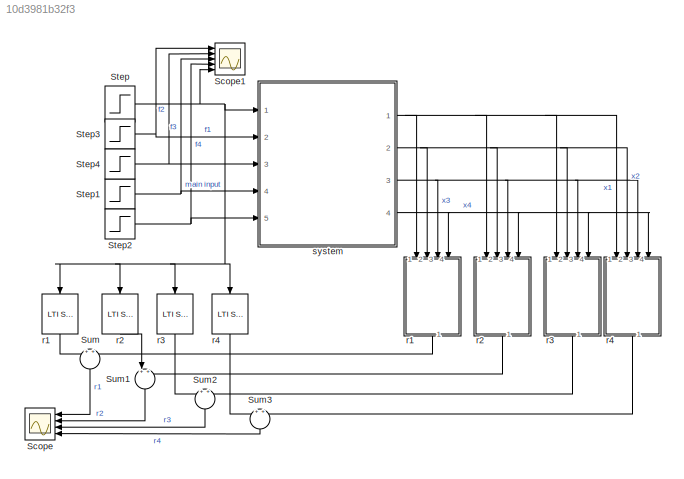
MODEL slx_10d3981b32f3
KIND model
CONFIG AbsTol = auto
CONFIG EnableMultiTasking = on
CONFIG FixedStep = auto
CONFIG MaxStep = auto
CONFIG MinStep = auto
CONFIG RelTol = 1e-3
CONFIG SampleTimeConstraint = Unconstrained
CONFIG SolverName = ode45
CONFIG StartTime = 0.0
CONFIG StopTime = 5
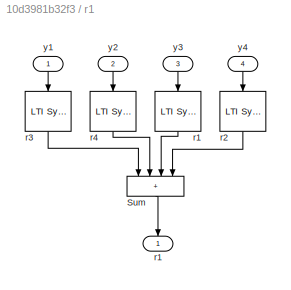
BLOCK [SubSystem]  r1
  NameLocation = left
  Ports = [4, 1]
  RequestExecContextInheritance = off
BLOCK [Reference]  r1/ r1  REF=cstblocks/LTI System
  NameLocation = left
  Ports = [1, 1]
  SourceBlock = cstblocks/LTI System
  SourceProductBaseCode = CT
  SourceType = LTI Block
BLOCK [Reference]  r1/ r2  REF=cstblocks/LTI System
  NameLocation = left
  Ports = [1, 1]
  SourceBlock = cstblocks/LTI System
  SourceProductBaseCode = CT
  SourceType = LTI Block
BLOCK [Sum]  r1/Sum
  IconShape = rectangular
  Inputs = ++++
  NameLocation = left
  Ports = [4, 1]
BLOCK [Outport]  r1/r1
  NameLocation = right
BLOCK [Reference]  r1/r3  REF=cstblocks/LTI System
  NameLocation = left
  Ports = [1, 1]
  SourceBlock = cstblocks/LTI System
  SourceProductBaseCode = CT
  SourceType = LTI Block
BLOCK [Reference]  r1/r4  REF=cstblocks/LTI System
  NameLocation = left
  Ports = [1, 1]
  SourceBlock = cstblocks/LTI System
  SourceProductBaseCode = CT
  SourceType = LTI Block
BLOCK [Inport]  r1/y1
  NameLocation = right
BLOCK [Inport]  r1/y2
  NameLocation = right
  Port = 2
BLOCK [Inport]  r1/y3
  NameLocation = right
  Port = 3
BLOCK [Inport]  r1/y4
  NameLocation = right
  Port = 4
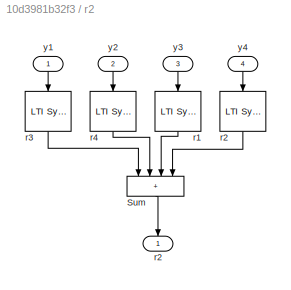
BLOCK [SubSystem]  r2
  NameLocation = left
  Ports = [4, 1]
  RequestExecContextInheritance = off
BLOCK [Reference]  r2/ r1  REF=cstblocks/LTI System
  NameLocation = left
  Ports = [1, 1]
  SourceBlock = cstblocks/LTI System
  SourceProductBaseCode = CT
  SourceType = LTI Block
BLOCK [Reference]  r2/ r2  REF=cstblocks/LTI System
  NameLocation = left
  Ports = [1, 1]
  SourceBlock = cstblocks/LTI System
  SourceProductBaseCode = CT
  SourceType = LTI Block
BLOCK [Sum]  r2/Sum
  IconShape = rectangular
  Inputs = ++++
  NameLocation = left
  Ports = [4, 1]
BLOCK [Outport]  r2/r2
  NameLocation = right
BLOCK [Reference]  r2/r3  REF=cstblocks/LTI System
  NameLocation = left
  Ports = [1, 1]
  SourceBlock = cstblocks/LTI System
  SourceProductBaseCode = CT
  SourceType = LTI Block
BLOCK [Reference]  r2/r4  REF=cstblocks/LTI System
  NameLocation = left
  Ports = [1, 1]
  SourceBlock = cstblocks/LTI System
  SourceProductBaseCode = CT
  SourceType = LTI Block
BLOCK [Inport]  r2/y1
  NameLocation = right
BLOCK [Inport]  r2/y2
  NameLocation = right
  Port = 2
BLOCK [Inport]  r2/y3
  NameLocation = right
  Port = 3
BLOCK [Inport]  r2/y4
  NameLocation = right
  Port = 4
BLOCK [Reference]  r3  REF=cstblocks/LTI System
  NameLocation = left
  Ports = [1, 1]
  SourceBlock = cstblocks/LTI System
  SourceProductBaseCode = CT
  SourceType = LTI Block
BLOCK [Reference]  r4  REF=cstblocks/LTI System
  NameLocation = left
  Ports = [1, 1]
  SourceBlock = cstblocks/LTI System
  SourceProductBaseCode = CT
  SourceType = LTI Block
BLOCK [Scope] Scope
  Floating = off
  NumInputPorts = 4
  Ports = [4]
  ScopeSpecificationString = Simulink.scopes.TimeScopeBlockCfg('CurrentConfiguration', extmgr.ConfigurationSet(extmgr.Configuration('Core','General UI',true),extmgr.Configuration('Core','Source UI',true),extmgr.Configuration('Sources','WiredSimulink',true),extmgr.Configuration('Visuals','Time Domain',true,'SerializedDisplays',{struct('MinYLimReal','-1.00000','MaxYLimReal','1.00000','YLabelReal','','MinYLimMag','0.00000','MaxY...<+3307ch>
BLOCK [Scope] Scope1
  Floating = off
  NumInputPorts = 5
  Ports = [5]
  ScopeSpecificationString = Simulink.scopes.TimeScopeBlockCfg('CurrentConfiguration', extmgr.ConfigurationSet(extmgr.Configuration('Core','General UI',true),extmgr.Configuration('Core','Source UI',true),extmgr.Configuration('Sources','WiredSimulink',true,'DataLoggingVariableName','ScopeData1'),extmgr.Configuration('Visuals','Time Domain',true,'SerializedDisplays',{struct('MinYLimReal','-1.00000','MaxYLimReal','1.00000','YLab...<+4736ch>
BLOCK [Step] Step
  After = 0
  SampleTime = 0
  Time = 0
BLOCK [Step] Step1
  After = 0
  SampleTime = 0
  Time = 0
BLOCK [Step] Step2
  After = 2
  SampleTime = 0
  Time = 2
BLOCK [Step] Step3
  After = 0
  SampleTime = 0
  Time = 0
BLOCK [Step] Step4
  After = 0
  SampleTime = 0
  Time = 0
BLOCK [Sum] Sum
  NameLocation = left
  Ports = [2, 1]
BLOCK [Sum] Sum1
  NameLocation = left
  Ports = [2, 1]
BLOCK [Sum] Sum2
  NameLocation = left
  Ports = [2, 1]
BLOCK [Sum] Sum3
  NameLocation = left
  Ports = [2, 1]
BLOCK [Reference] r1  REF=cstblocks/LTI System
  NameLocation = left
  Ports = [1, 1]
  SourceBlock = cstblocks/LTI System
  SourceProductBaseCode = CT
  SourceType = LTI Block
BLOCK [Reference] r2  REF=cstblocks/LTI System
  NameLocation = left
  Ports = [1, 1]
  SourceBlock = cstblocks/LTI System
  SourceProductBaseCode = CT
  SourceType = LTI Block
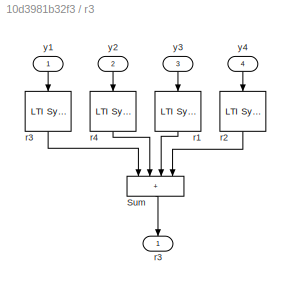
BLOCK [SubSystem] r3
  NameLocation = left
  Ports = [4, 1]
  RequestExecContextInheritance = off
BLOCK [Reference] r3/ r1  REF=cstblocks/LTI System
  NameLocation = left
  Ports = [1, 1]
  SourceBlock = cstblocks/LTI System
  SourceProductBaseCode = CT
  SourceType = LTI Block
BLOCK [Reference] r3/ r2  REF=cstblocks/LTI System
  NameLocation = left
  Ports = [1, 1]
  SourceBlock = cstblocks/LTI System
  SourceProductBaseCode = CT
  SourceType = LTI Block
BLOCK [Outport] r3/ r3 
  NameLocation = right
BLOCK [Sum] r3/Sum
  IconShape = rectangular
  Inputs = ++++
  NameLocation = left
  Ports = [4, 1]
BLOCK [Reference] r3/r3  REF=cstblocks/LTI System
  NameLocation = left
  Ports = [1, 1]
  SourceBlock = cstblocks/LTI System
  SourceProductBaseCode = CT
  SourceType = LTI Block
BLOCK [Reference] r3/r4  REF=cstblocks/LTI System
  NameLocation = left
  Ports = [1, 1]
  SourceBlock = cstblocks/LTI System
  SourceProductBaseCode = CT
  SourceType = LTI Block
BLOCK [Inport] r3/y1
  NameLocation = right
BLOCK [Inport] r3/y2
  NameLocation = right
  Port = 2
BLOCK [Inport] r3/y3
  NameLocation = right
  Port = 3
BLOCK [Inport] r3/y4
  NameLocation = right
  Port = 4
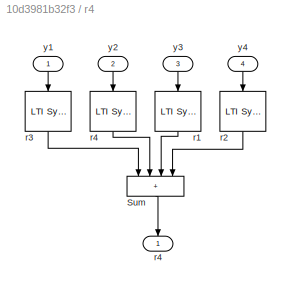
BLOCK [SubSystem] r4
  NameLocation = left
  Ports = [4, 1]
  RequestExecContextInheritance = off
BLOCK [Reference] r4/ r1  REF=cstblocks/LTI System
  NameLocation = left
  Ports = [1, 1]
  SourceBlock = cstblocks/LTI System
  SourceProductBaseCode = CT
  SourceType = LTI Block
BLOCK [Reference] r4/ r2  REF=cstblocks/LTI System
  NameLocation = left
  Ports = [1, 1]
  SourceBlock = cstblocks/LTI System
  SourceProductBaseCode = CT
  SourceType = LTI Block
BLOCK [Sum] r4/Sum
  IconShape = rectangular
  Inputs = ++++
  NameLocation = left
  Ports = [4, 1]
BLOCK [Reference] r4/r3  REF=cstblocks/LTI System
  NameLocation = left
  Ports = [1, 1]
  SourceBlock = cstblocks/LTI System
  SourceProductBaseCode = CT
  SourceType = LTI Block
BLOCK [Reference] r4/r4  REF=cstblocks/LTI System
  NameLocation = left
  Ports = [1, 1]
  SourceBlock = cstblocks/LTI System
  SourceProductBaseCode = CT
  SourceType = LTI Block
BLOCK [Outport] r4/r4 
  NameLocation = right
BLOCK [Inport] r4/y1
  NameLocation = right
BLOCK [Inport] r4/y2
  NameLocation = right
  Port = 2
BLOCK [Inport] r4/y3
  NameLocation = right
  Port = 3
BLOCK [Inport] r4/y4
  NameLocation = right
  Port = 4
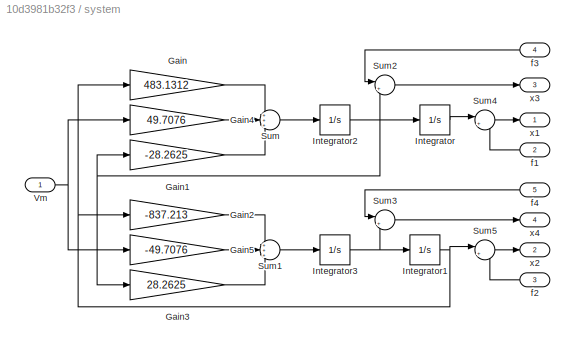
BLOCK [SubSystem] system
  Ports = [5, 4]
  RequestExecContextInheritance = off
BLOCK [Gain] system/Gain
  Gain = 483.1312
BLOCK [Gain] system/Gain1
  Gain = -28.2625
BLOCK [Gain] system/Gain2
  Gain = -837.213
BLOCK [Gain] system/Gain3
  Gain = 28.2625
BLOCK [Gain] system/Gain4
  Gain = 49.7076
BLOCK [Gain] system/Gain5
  Gain = -49.7076
BLOCK [Integrator] system/Integrator
  Ports = [1, 1]
BLOCK [Integrator] system/Integrator1
  Ports = [1, 1]
BLOCK [Integrator] system/Integrator2
  Ports = [1, 1]
BLOCK [Integrator] system/Integrator3
  Ports = [1, 1]
BLOCK [Sum] system/Sum
  Inputs = +++
  Ports = [3, 1]
BLOCK [Sum] system/Sum1
  Inputs = +++
  Ports = [3, 1]
BLOCK [Sum] system/Sum2
  Inputs = |++
  Ports = [2, 1]
BLOCK [Sum] system/Sum3
  Inputs = |++
  Ports = [2, 1]
BLOCK [Sum] system/Sum4
  Inputs = |++
  Ports = [2, 1]
BLOCK [Sum] system/Sum5
  Inputs = |++
  Ports = [2, 1]
BLOCK [Inport] system/Vm
BLOCK [Inport] system/f1
  Port = 2
BLOCK [Inport] system/f2
  Port = 3
BLOCK [Inport] system/f3
  Port = 4
BLOCK [Inport] system/f4 
  Port = 5
BLOCK [Outport] system/x1
BLOCK [Outport] system/x2
  Port = 2
BLOCK [Outport] system/x3
  Port = 3
BLOCK [Outport] system/x4
  Port = 4
LINE  r1/ r1:1 ->  r1/Sum:3
LINE  r1/ r2:1 ->  r1/Sum:4
LINE  r1/Sum:1 ->  r1/r1:1
LINE  r1/r3:1 ->  r1/Sum:1
LINE  r1/r4:1 ->  r1/Sum:2
LINE  r1/y1:1 ->  r1/r3:1
LINE  r1/y2:1 ->  r1/r4:1
LINE  r1/y3:1 ->  r1/ r1:1
LINE  r1/y4:1 ->  r1/ r2:1
LINE  r1:1 -> Sum:2
LINE  r2/ r1:1 ->  r2/Sum:3
LINE  r2/ r2:1 ->  r2/Sum:4
LINE  r2/Sum:1 ->  r2/r2:1
LINE  r2/r3:1 ->  r2/Sum:1
LINE  r2/r4:1 ->  r2/Sum:2
LINE  r2/y1:1 ->  r2/r3:1
LINE  r2/y2:1 ->  r2/r4:1
LINE  r2/y3:1 ->  r2/ r1:1
LINE  r2/y4:1 ->  r2/ r2:1
LINE  r2:1 -> Sum1:2
LINE  r3:1 -> Sum2:1
LINE  r4:1 -> Sum3:1
NET Step1:1 -> Scope1:3, system:4
NET Step2:1 -> Scope1:4, system:5
NET Step3:1 -> Scope1:1, system:2
NET Step4:1 -> Scope1:2, system:3
NET Step:1 ->  r3:1,  r4:1, Scope1:5, r1:1, r2:1, system:1
LINE Sum1:1 -> Scope:2
LINE Sum2:1 -> Scope:3
LINE Sum3:1 -> Scope:4
LINE Sum:1 -> Scope:1
LINE r1:1 -> Sum:1
LINE r2:1 -> Sum1:1
LINE r3/ r1:1 -> r3/Sum:3
LINE r3/ r2:1 -> r3/Sum:4
LINE r3/Sum:1 -> r3/ r3 :1
LINE r3/r3:1 -> r3/Sum:1
LINE r3/r4:1 -> r3/Sum:2
LINE r3/y1:1 -> r3/r3:1
LINE r3/y2:1 -> r3/r4:1
LINE r3/y3:1 -> r3/ r1:1
LINE r3/y4:1 -> r3/ r2:1
LINE r3:1 -> Sum2:2
LINE r4/ r1:1 -> r4/Sum:3
LINE r4/ r2:1 -> r4/Sum:4
LINE r4/Sum:1 -> r4/r4 :1
LINE r4/r3:1 -> r4/Sum:1
LINE r4/r4:1 -> r4/Sum:2
LINE r4/y1:1 -> r4/r3:1
LINE r4/y2:1 -> r4/r4:1
LINE r4/y3:1 -> r4/ r1:1
LINE r4/y4:1 -> r4/ r2:1
LINE r4:1 -> Sum3:2
LINE system/Gain1:1 -> system/Sum:3
LINE system/Gain2:1 -> system/Sum1:1
LINE system/Gain3:1 -> system/Sum1:3
LINE system/Gain4:1 -> system/Sum:2
LINE system/Gain5:1 -> system/Sum1:2
LINE system/Gain:1 -> system/Sum:1
NET system/Integrator1:1 -> system/Gain2:1, system/Gain:1, system/Sum5:1
NET system/Integrator2:1 -> system/Gain1:1, system/Gain3:1, system/Integrator:1, system/Sum2:2
NET system/Integrator3:1 -> system/Integrator1:1, system/Sum3:2
LINE system/Integrator:1 -> system/Sum4:1
LINE system/Sum1:1 -> system/Integrator3:1
LINE system/Sum2:1 -> system/x3:1
LINE system/Sum3:1 -> system/x4:1
LINE system/Sum4:1 -> system/x1:1
LINE system/Sum5:1 -> system/x2:1
LINE system/Sum:1 -> system/Integrator2:1
NET system/Vm:1 -> system/Gain4:1, system/Gain5:1
LINE system/f1:1 -> system/Sum4:2
LINE system/f2:1 -> system/Sum5:2
LINE system/f3:1 -> system/Sum2:1
LINE system/f4 :1 -> system/Sum3:1
NET system:1 ->  r1:1,  r2:1, r3:1, r4:1
NET system:2 ->  r1:2,  r2:2, r3:2, r4:2
NET system:3 ->  r1:3,  r2:3, r3:3, r4:3
NET system:4 ->  r1:4,  r2:4, r3:4, r4:4
note: NET lines group one-source signal fan-out (src -> all destinations, sorted); 1:1 wires keep LINE
